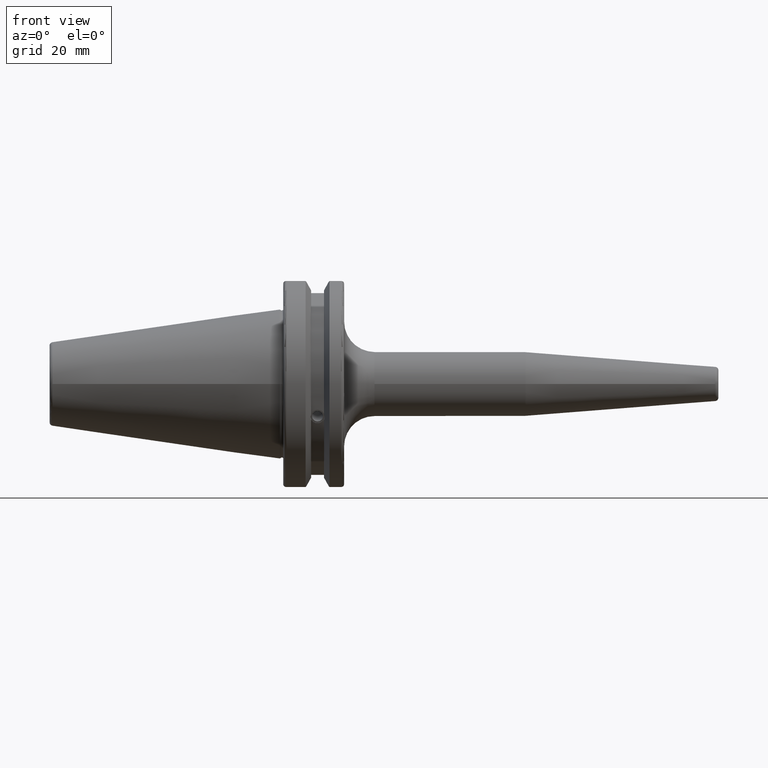
[diagram: clean part render]
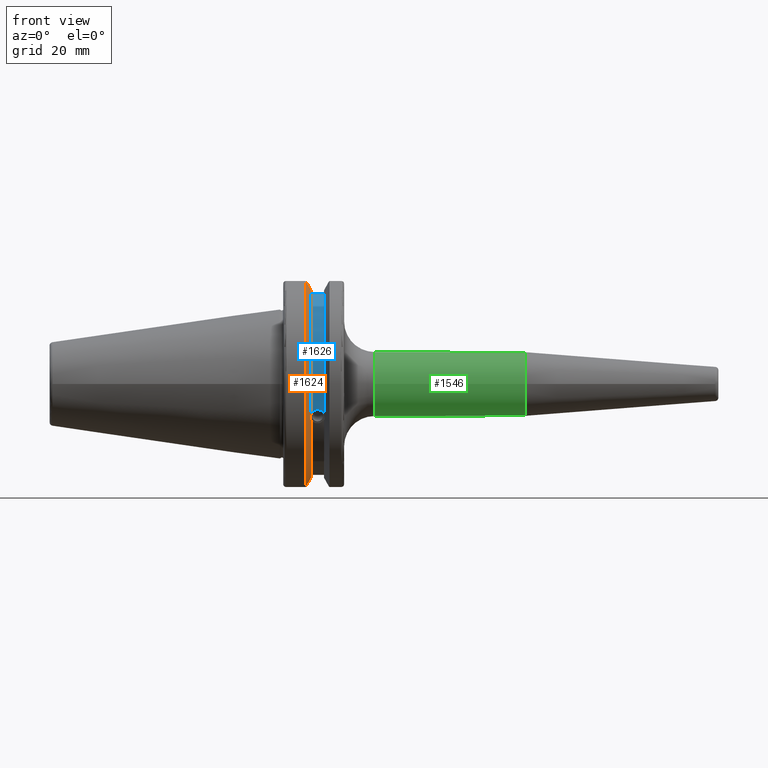
[diagram: same view with three faces highlighted in distinct colors, each labeled with its STEP entity id]
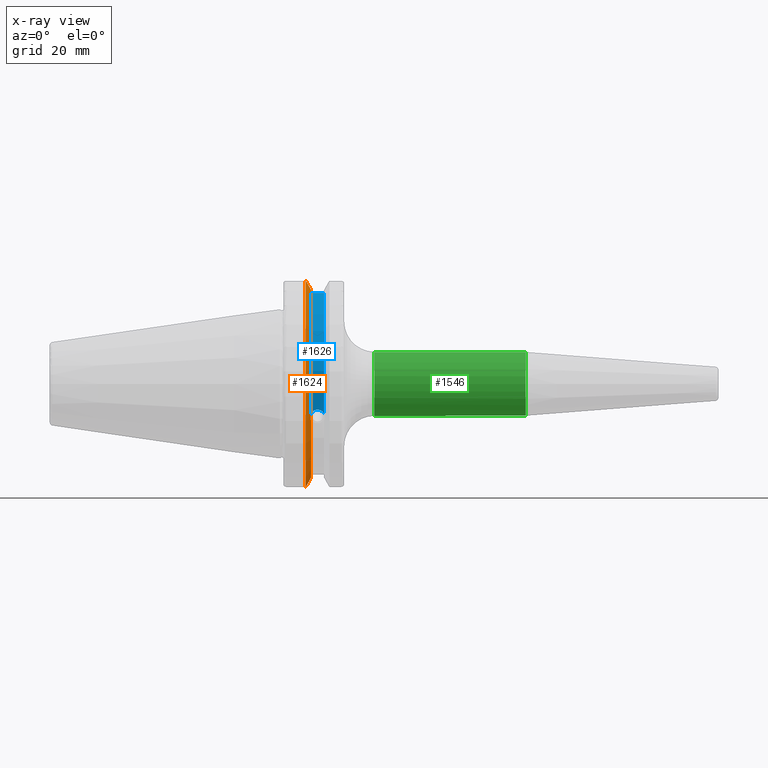
[diagram: x-ray of the same camera — body ghosted, the three highlighted faces saturated]
A machine part, front view with three faces highlighted in distinct colors.
The next image is the same camera in x-ray (body ghosted, the three faces saturated) — at least one of them is partly hidden behind the body in this view.
Their STEP definitions:

[orange] entity #1624 — the highlighted conical surface has half-angle 60 deg.
#28=(
BOUNDED_CURVE()
B_SPLINE_CURVE(2,(#2887,#2888,#2889),.UNSPECIFIED.,.F.,.F.)
B_SPLINE_CURVE_WITH_KNOTS((3,3),(0.,0.27654914279601),.UNSPECIFIED.)
CURVE()
GEOMETRIC_REPRESENTATION_ITEM()
RATIONAL_B_SPLINE_CURVE((1.,1.00095203903532,1.00031614444885))
REPRESENTATION_ITEM('')
);
#29=(
BOUNDED_CURVE()
B_SPLINE_CURVE(2,(#2899,#2900,#2901),.UNSPECIFIED.,.F.,.F.)
B_SPLINE_CURVE_WITH_KNOTS((3,3),(0.0550586467392668,0.331607789535851),
 .UNSPECIFIED.)
CURVE()
GEOMETRIC_REPRESENTATION_ITEM()
RATIONAL_B_SPLINE_CURVE((1.0003161444496,1.00095203903759,1.))
REPRESENTATION_ITEM('')
);
#30=(
BOUNDED_CURVE()
B_SPLINE_CURVE(2,(#2938,#2939,#2940),.UNSPECIFIED.,.F.,.F.)
B_SPLINE_CURVE_WITH_KNOTS((3,3),(0.,0.0639048713675873),.UNSPECIFIED.)
CURVE()
GEOMETRIC_REPRESENTATION_ITEM()
RATIONAL_B_SPLINE_CURVE((1.,1.00028444218292,1.00047644010589))
REPRESENTATION_ITEM('')
);
#31=(
BOUNDED_CURVE()
B_SPLINE_CURVE(2,(#2946,#2947,#2948),.UNSPECIFIED.,.F.,.F.)
B_SPLINE_CURVE_WITH_KNOTS((3,3),(0.329353533631225,0.393258405001025),
 .UNSPECIFIED.)
CURVE()
GEOMETRIC_REPRESENTATION_ITEM()
RATIONAL_B_SPLINE_CURVE((1.00047644010574,1.00028444218284,1.))
REPRESENTATION_ITEM('')
);
#60=B_SPLINE_CURVE_WITH_KNOTS('',3,(#2528,#2529,#2530,#2531,#2532,#2533,
#2534,#2535,#2536,#2537,#2538,#2539,#2540,#2541),.UNSPECIFIED.,.F.,.F.,
(4,2,2,2,2,2,4),(0.451995700189025,0.464547828547661,0.504528771685166,
0.544509714822671,0.584490657960176,0.624471601097681,0.637023729456317),
 .UNSPECIFIED.);
#99=CONICAL_SURFACE('',#1829,30.3546886482472,1.0471975511966);
#459=FACE_OUTER_BOUND('',#562,.T.);
#562=EDGE_LOOP('',(#1505,#1506,#1507,#1508,#1509,#1510,#1511,#1512));
#602=CIRCLE('',#1722,28.9593772964944);
#620=CIRCLE('',#1773,31.75);
#643=CIRCLE('',#1830,28.9593772964944);
#693=VERTEX_POINT('',#2525);
#694=VERTEX_POINT('',#2527);
#711=VERTEX_POINT('',#2620);
#761=VERTEX_POINT('',#2884);
#762=VERTEX_POINT('',#2886);
#765=VERTEX_POINT('',#2898);
#771=VERTEX_POINT('',#2936);
#772=VERTEX_POINT('',#2942);
#868=EDGE_CURVE('',#694,#693,#60,.T.);
#892=EDGE_CURVE('',#694,#711,#602,.T.);
#963=EDGE_CURVE('',#762,#761,#28,.T.);
#969=EDGE_CURVE('',#765,#711,#29,.T.);
#979=EDGE_CURVE('',#771,#761,#30,.T.);
#981=EDGE_CURVE('',#771,#772,#620,.T.);
#982=EDGE_CURVE('',#765,#772,#31,.T.);
#1042=EDGE_CURVE('',#762,#693,#643,.T.);
#1505=ORIENTED_EDGE('',*,*,#868,.T.);
#1506=ORIENTED_EDGE('',*,*,#1042,.F.);
#1507=ORIENTED_EDGE('',*,*,#963,.T.);
#1508=ORIENTED_EDGE('',*,*,#979,.F.);
#1509=ORIENTED_EDGE('',*,*,#981,.T.);
#1510=ORIENTED_EDGE('',*,*,#982,.F.);
#1511=ORIENTED_EDGE('',*,*,#969,.T.);
#1512=ORIENTED_EDGE('',*,*,#892,.F.);
#1624=ADVANCED_FACE('',(#459),#99,.T.);
#1722=AXIS2_PLACEMENT_3D('',#2621,#2011,#2012);
#1773=AXIS2_PLACEMENT_3D('',#2944,#2148,#2149);
#1829=AXIS2_PLACEMENT_3D('',#3098,#2290,#2291);
#1830=AXIS2_PLACEMENT_3D('',#3099,#2292,#2293);
#2011=DIRECTION('center_axis',(1.,0.,0.));
#2012=DIRECTION('ref_axis',(0.,0.,-1.));
#2148=DIRECTION('center_axis',(1.,0.,0.));
#2149=DIRECTION('ref_axis',(0.,0.,-1.));
#2290=DIRECTION('center_axis',(-1.,0.,0.));
#2291=DIRECTION('ref_axis',(0.,-1.,-1.22464679914735E-16));
#2292=DIRECTION('center_axis',(1.,0.,0.));
#2293=DIRECTION('ref_axis',(0.,0.,-1.));
#2525=CARTESIAN_POINT('',(9.261,-27.4956274489925,-9.09043478536247));
#2527=CARTESIAN_POINT('',(9.261,-26.9060914640648,-10.7101715919071));
#2528=CARTESIAN_POINT('Ctrl Pts',(9.26099999999999,-26.9060914640648,-10.7101715919071));
#2529=CARTESIAN_POINT('Ctrl Pts',(9.24687959280038,-26.9406927482839,-10.6893765730703));
#2530=CARTESIAN_POINT('Ctrl Pts',(9.23340701821433,-26.9744191989197,-10.6676007180673));
#2531=CARTESIAN_POINT('Ctrl Pts',(9.18001855884095,-27.1113422433189,-10.5723885976054));
#2532=CARTESIAN_POINT('Ctrl Pts',(9.14188029158246,-27.2180531796526,-10.4801333026531));
#2533=CARTESIAN_POINT('Ctrl Pts',(9.08968935539424,-27.3968610665578,-10.2639559818059));
#2534=CARTESIAN_POINT('Ctrl Pts',(9.076,-27.4684373304961,-10.139516340139));
#2535=CARTESIAN_POINT('Ctrl Pts',(9.076,-27.559599249844,-9.8890510252165));
#2536=CARTESIAN_POINT('Ctrl Pts',(9.08968935539424,-27.5847569104122,-9.74771639360671));
#2537=CARTESIAN_POINT('Ctrl Pts',(9.14188029158246,-27.5867382255984,-9.46717946402648));
#2538=CARTESIAN_POINT('Ctrl Pts',(9.18001855884095,-27.5642934663232,-9.32791534028656));
#2539=CARTESIAN_POINT('Ctrl Pts',(9.23340701821433,-27.5206055003512,-9.16696618806878));
#2540=CARTESIAN_POINT('Ctrl Pts',(9.24687959280038,-27.5087667900418,-9.12860597076218));
#2541=CARTESIAN_POINT('Ctrl Pts',(9.261,-27.4956274489925,-9.09043478536247));
#2620=CARTESIAN_POINT('',(9.261,-8.19,-27.7771386827498));
#2621=CARTESIAN_POINT('Origin',(9.261,0.,0.));
#2884=CARTESIAN_POINT('',(7.92858530351256,-8.19,30.1755016258903));
#2886=CARTESIAN_POINT('',(9.261,-8.19,27.7771386827498));
#2887=CARTESIAN_POINT('Ctrl Pts',(9.261,-8.19,27.7771386827498));
#2888=CARTESIAN_POINT('Ctrl Pts',(8.62236356152083,-8.19,28.930368953976));
#2889=CARTESIAN_POINT('Ctrl Pts',(7.92858530351256,-8.19,30.1755016258903));
#2898=CARTESIAN_POINT('',(7.92858530351256,-8.19,-30.1755016258903));
#2899=CARTESIAN_POINT('Ctrl Pts',(7.92858530351256,-8.19,-30.1755016258903));
#2900=CARTESIAN_POINT('Ctrl Pts',(8.62236356152658,-8.19,-28.9303689539657));
#2901=CARTESIAN_POINT('Ctrl Pts',(9.261,-8.19,-27.7771386827498));
#2936=CARTESIAN_POINT('',(7.64983323092436,-8.67204822802685,30.5427254764662));
#2938=CARTESIAN_POINT('Ctrl Pts',(7.64983323092436,-8.67204822802685,30.5427254764662));
#2939=CARTESIAN_POINT('Ctrl Pts',(7.79089148121629,-8.42917748262643,30.357706789263));
#2940=CARTESIAN_POINT('Ctrl Pts',(7.92858530351256,-8.19,30.1755016258903));
#2942=CARTESIAN_POINT('',(7.64983323092436,-8.67204822802685,-30.5427254764662));
#2944=CARTESIAN_POINT('Origin',(7.64983323092436,0.,0.));
#2946=CARTESIAN_POINT('Ctrl Pts',(7.92858530351256,-8.19,-30.1755016258903));
#2947=CARTESIAN_POINT('Ctrl Pts',(7.7908914812116,-8.42917748263465,-30.3577067892692));
#2948=CARTESIAN_POINT('Ctrl Pts',(7.64983323092436,-8.67204822802686,-30.5427254764662));
#3098=CARTESIAN_POINT('Origin',(8.45541661546218,0.,0.));
#3099=CARTESIAN_POINT('Origin',(9.261,0.,0.));

[blue] entity #1626 — the highlighted cylindrical surface (partial cylindrical patch) has radius 28.15 mm, axis along (1, 0, 0).
#59=B_SPLINE_CURVE_WITH_KNOTS('',3,(#2511,#2512,#2513,#2514,#2515,#2516,
#2517,#2518,#2519,#2520,#2521,#2522,#2523,#2524),.UNSPECIFIED.,.F.,.F.,
(4,2,2,2,2,2,4),(0.401639126382403,0.474814416953736,0.553950208498303,
0.63308600004287,0.712221791587437,0.791357583132004,0.864532873703336),
 .UNSPECIFIED.);
#158=LINE('',#2893,#256);
#256=VECTOR('',#2127,10.);
#323=CYLINDRICAL_SURFACE('',#1833,28.15);
#461=FACE_OUTER_BOUND('',#564,.T.);
#564=EDGE_LOOP('',(#1517,#1518,#1519,#1520));
#644=CIRCLE('',#1832,28.15);
#645=CIRCLE('',#1834,28.15);
#691=VERTEX_POINT('',#2508);
#692=VERTEX_POINT('',#2510);
#763=VERTEX_POINT('',#2890);
#764=VERTEX_POINT('',#2892);
#866=EDGE_CURVE('',#692,#691,#59,.T.);
#965=EDGE_CURVE('',#764,#763,#158,.T.);
#1043=EDGE_CURVE('',#763,#692,#644,.T.);
#1044=EDGE_CURVE('',#764,#691,#645,.T.);
#1517=ORIENTED_EDGE('',*,*,#866,.T.);
#1518=ORIENTED_EDGE('',*,*,#1044,.F.);
#1519=ORIENTED_EDGE('',*,*,#965,.T.);
#1520=ORIENTED_EDGE('',*,*,#1043,.T.);
#1626=ADVANCED_FACE('',(#461),#323,.T.);
#1832=AXIS2_PLACEMENT_3D('',#3101,#2296,#2297);
#1833=AXIS2_PLACEMENT_3D('',#3102,#2298,#2299);
#1834=AXIS2_PLACEMENT_3D('',#3103,#2300,#2301);
#2127=DIRECTION('',(-1.,0.,0.));
#2296=DIRECTION('center_axis',(1.,0.,0.));
#2297=DIRECTION('ref_axis',(0.,0.,-1.));
#2298=DIRECTION('center_axis',(1.,0.,0.));
#2299=DIRECTION('ref_axis',(0.,-0.887654187951484,0.46051063246378));
#2300=DIRECTION('center_axis',(1.,0.,0.));
#2301=DIRECTION('ref_axis',(0.,0.,-1.));
#2508=CARTESIAN_POINT('',(13.091,-26.734714844398,-8.81348524641212));
#2510=CARTESIAN_POINT('',(9.261,-26.734714844398,-8.81348524641212));
#2511=CARTESIAN_POINT('Ctrl Pts',(9.261,-26.734714844398,-8.81348524641212));
#2512=CARTESIAN_POINT('Ctrl Pts',(9.36723057097183,-26.8086519721597,-8.58920529678291));
#2513=CARTESIAN_POINT('Ctrl Pts',(9.51872013770509,-26.8729987454904,-8.38416529997369));
#2514=CARTESIAN_POINT('Ctrl Pts',(9.87747062657411,-26.9778908791383,-8.04056861831091));
#2515=CARTESIAN_POINT('Ctrl Pts',(10.1135450112988,-27.0233016799732,-7.88512567185902));
#2516=CARTESIAN_POINT('Ctrl Pts',(10.6309125426388,-27.0826966800569,-7.6786444840004));
#2517=CARTESIAN_POINT('Ctrl Pts',(10.9122140281848,-27.0968804077294,-7.62768458768513));
#2518=CARTESIAN_POINT('Ctrl Pts',(11.4397859718152,-27.0968804077294,-7.62768458768513));
#2519=CARTESIAN_POINT('Ctrl Pts',(11.7210874573612,-27.0826966800569,-7.6786444840004));
#2520=CARTESIAN_POINT('Ctrl Pts',(12.2384549887012,-27.0233016799732,-7.88512567185903));
#2521=CARTESIAN_POINT('Ctrl Pts',(12.4745293734259,-26.9778908791383,-8.04056861831091));
#2522=CARTESIAN_POINT('Ctrl Pts',(12.8332798622949,-26.8729987454904,-8.3841652999737));
#2523=CARTESIAN_POINT('Ctrl Pts',(12.9847694290282,-26.8086519721597,-8.58920529678291));
#2524=CARTESIAN_POINT('Ctrl Pts',(13.091,-26.734714844398,-8.81348524641212));
#2890=CARTESIAN_POINT('',(9.261,-8.19,26.932255754021));
#2892=CARTESIAN_POINT('',(13.091,-8.19,26.932255754021));
#2893=CARTESIAN_POINT('',(11.176,-8.19,26.932255754021));
#3101=CARTESIAN_POINT('Origin',(9.261,0.,0.));
#3102=CARTESIAN_POINT('Origin',(11.176,0.,0.));
#3103=CARTESIAN_POINT('Origin',(13.091,0.,0.));

[green] entity #1546 — the highlighted cylindrical surface (bore or boss wall) has radius 9.5 mm, axis along (1, 0, 0).
#102=LINE('',#2346,#200);
#200=VECTOR('',#1885,9.5);
#297=CYLINDRICAL_SURFACE('',#1673,9.5);
#381=FACE_OUTER_BOUND('',#472,.T.);
#472=EDGE_LOOP('',(#1074,#1075,#1076,#1077,#1078));
#578=CIRCLE('',#1667,9.5);
#579=CIRCLE('',#1669,9.5);
#582=CIRCLE('',#1672,9.5);
#654=VERTEX_POINT('',#2334);
#655=VERTEX_POINT('',#2338);
#656=VERTEX_POINT('',#2339);
#816=EDGE_CURVE('',#654,#654,#578,.T.);
#817=EDGE_CURVE('',#655,#656,#579,.T.);
#820=EDGE_CURVE('',#656,#655,#582,.T.);
#821=EDGE_CURVE('',#654,#655,#102,.T.);
#1074=ORIENTED_EDGE('',*,*,#816,.F.);
#1075=ORIENTED_EDGE('',*,*,#821,.T.);
#1076=ORIENTED_EDGE('',*,*,#820,.F.);
#1077=ORIENTED_EDGE('',*,*,#817,.F.);
#1078=ORIENTED_EDGE('',*,*,#821,.F.);
#1546=ADVANCED_FACE('',(#381),#297,.T.);
#1667=AXIS2_PLACEMENT_3D('',#2336,#1871,#1872);
#1669=AXIS2_PLACEMENT_3D('',#2340,#1875,#1876);
#1672=AXIS2_PLACEMENT_3D('',#2344,#1881,#1882);
#1673=AXIS2_PLACEMENT_3D('',#2345,#1883,#1884);
#1871=DIRECTION('center_axis',(1.,0.,0.));
#1872=DIRECTION('ref_axis',(0.,0.,-1.));
#1875=DIRECTION('center_axis',(-1.,0.,0.));
#1876=DIRECTION('ref_axis',(0.,-1.,-1.22464679914735E-16));
#1881=DIRECTION('center_axis',(-1.,0.,0.));
#1882=DIRECTION('ref_axis',(0.,-1.,-1.22464679914735E-16));
#1883=DIRECTION('center_axis',(1.,0.,0.));
#1884=DIRECTION('ref_axis',(0.,1.,0.));
#1885=DIRECTION('',(-1.,0.,0.));
#2334=CARTESIAN_POINT('',(72.8220786872146,-9.5,-1.16341445918999E-15));
#2336=CARTESIAN_POINT('Origin',(72.8220786872146,0.,0.));
#2338=CARTESIAN_POINT('',(28.05,-9.5,-1.16341445918999E-15));
#2339=CARTESIAN_POINT('',(28.05,-1.16341445918999E-15,-9.5));
#2340=CARTESIAN_POINT('Origin',(28.05,0.,0.));
#2344=CARTESIAN_POINT('Origin',(28.05,0.,0.));
#2345=CARTESIAN_POINT('Origin',(45.9360393436073,0.,0.));
#2346=CARTESIAN_POINT('',(45.9360393436073,-9.5,-1.16341445918999E-15));